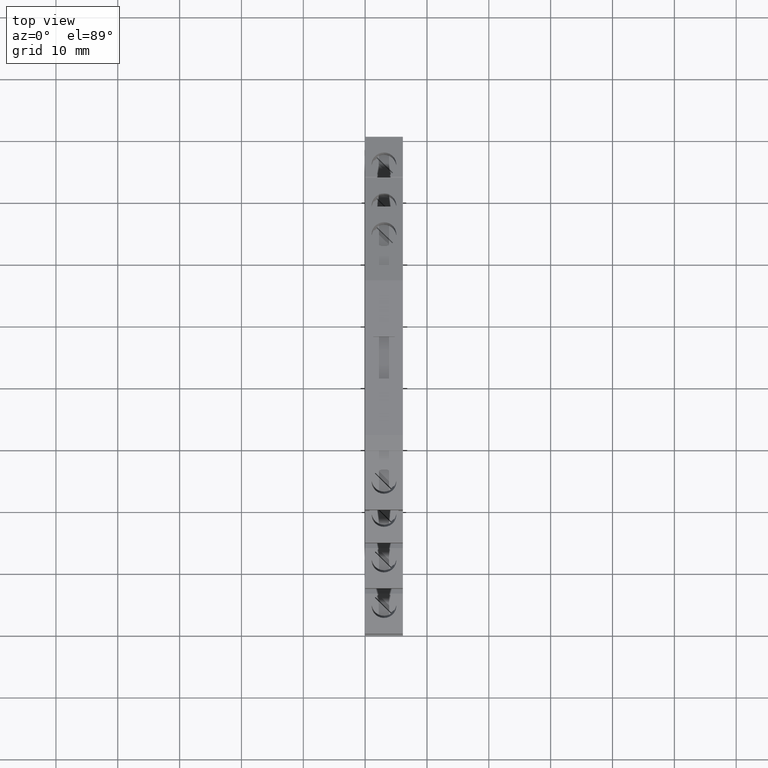
[diagram: clean part render]
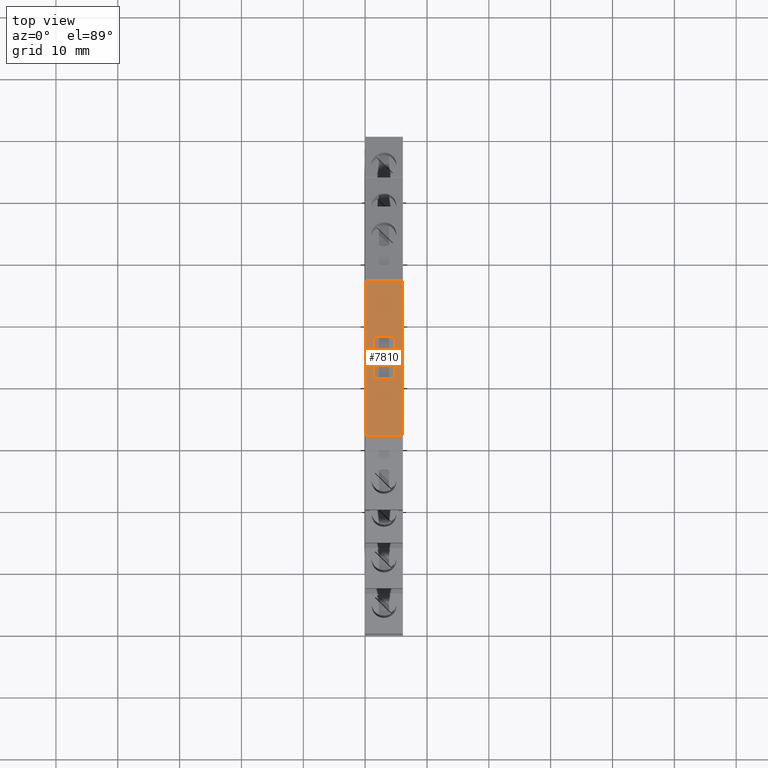
[diagram: same view with one face highlighted and labeled with its STEP entity id]
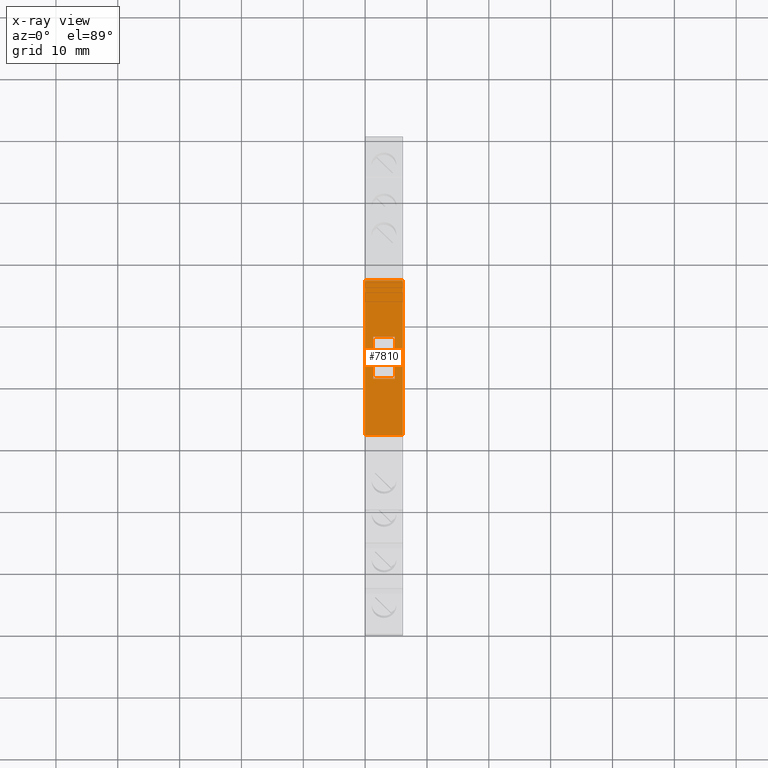
[diagram: x-ray of the same camera — body ghosted, the highlighted face saturated]
A machine part, top view. The second image highlights one B-rep face of the part: STEP entity #7810.
The next image is the same camera in x-ray: the body ghosted, the highlighted face saturated — about 0% of this face is hidden behind the body in this view.
In plain terms, the highlighted planar face has unit normal (-0, 0, -1).
Its self-contained STEP definition (entity closure, byte-faithful):
#100=CARTESIAN_POINT('',(-16.6167732443696,91.3331479429072,
1.50990331349021E-14));
#110=VERTEX_POINT('',#100);
#160=CARTESIAN_POINT('',(1.74895067094092,91.3331479429053,
1.50990331349021E-14));
#170=DIRECTION('',(-1.,1.06331610171392E-13,8.20415341429852E-29));
#180=VECTOR('',#170,1.);
#190=LINE('',#160,#180);
#200=CARTESIAN_POINT('',(8.41467458636292,91.3331479429045,
1.4210854715202E-14));
#210=VERTEX_POINT('',#200);
#220=EDGE_CURVE('',#210,#110,#190,.T.);
#1360=CARTESIAN_POINT('',(-16.6167732443696,91.3331479429072,
-6.1000000000043));
#1370=VERTEX_POINT('',#1360);
#1400=CARTESIAN_POINT('',(-16.6167732443696,91.3331479429072,
-5.30000000000001));
#1410=DIRECTION('',(-1.57809001312173E-29,5.76150921084809E-16,-1.));
#1420=VECTOR('',#1410,1.);
#1430=LINE('',#1400,#1420);
#1440=EDGE_CURVE('',#110,#1370,#1430,.T.);
#7240=CARTESIAN_POINT('',(-16.6167732443696,91.3331479429072,
1.50990331349021E-14));
#7250=DIRECTION('',(-1.06331610171392E-13,-1.,-5.76150921084809E-16));
#7260=DIRECTION('',(-1.,1.06331610171392E-13,7.68019984488942E-29));
#7270=AXIS2_PLACEMENT_3D('',#7240,#7250,#7260);
#7280=PLANE('',#7270);
#7290=ORIENTED_EDGE('',*,*,#220,.F.);
#7300=ORIENTED_EDGE('',*,*,#1440,.F.);
#7310=CARTESIAN_POINT('',(1.74895067094092,91.3331479429053,
-6.10000000000304));
#7320=DIRECTION('',(-1.,1.06331610171392E-13,-6.88518490957562E-14));
#7330=VECTOR('',#7320,1.);
#7340=LINE('',#7310,#7330);
#7350=CARTESIAN_POINT('',(8.41467458636292,91.3331479429045,
-6.10000000000258));
#7360=VERTEX_POINT('',#7350);
#7370=EDGE_CURVE('',#7360,#1370,#7340,.T.);
#7380=ORIENTED_EDGE('',*,*,#7370,.T.);
#7390=CARTESIAN_POINT('',(8.41467458636284,91.3331479429046,
-5.30000000000001));
#7400=DIRECTION('',(-1.58254789451473E-29,5.76150921084809E-16,-1.));
#7410=VECTOR('',#7400,1.);
#7420=LINE('',#7390,#7410);
#7430=EDGE_CURVE('',#210,#7360,#7420,.T.);
#7440=ORIENTED_EDGE('',*,*,#7430,.T.);
#7450=EDGE_LOOP('',(#7440,#7380,#7300,#7290));
#7460=FACE_OUTER_BOUND('',#7450,.T.);
#7470=CARTESIAN_POINT('',(1.74895067094092,91.3331479429053,
-1.29999999988724));
#7480=DIRECTION('',(1.,-1.06331610171392E-13,1.37281145856642E-13));
#7490=VECTOR('',#7480,1.);
#7500=LINE('',#7470,#7490);
#7510=CARTESIAN_POINT('',(-7.50104932900319,91.3331479429062,
-1.29999999988851));
#7520=VERTEX_POINT('',#7510);
#7530=CARTESIAN_POINT('',(-0.701049329003187,91.3331479429055,
-1.29999999988757));
#7540=VERTEX_POINT('',#7530);
#7550=EDGE_CURVE('',#7520,#7540,#7500,.T.);
#7560=ORIENTED_EDGE('',*,*,#7550,.F.);
#7570=CARTESIAN_POINT('',(-0.701049329002638,91.3331479429055,
-5.30000000000001));
#7580=DIRECTION('',(1.37281145856642E-13,5.76150921070201E-16,-1.));
#7590=VECTOR('',#7580,1.);
#7600=LINE('',#7570,#7590);
#7610=CARTESIAN_POINT('',(-0.701049329002707,91.3331479429055,
-4.79999999988755));
#7620=VERTEX_POINT('',#7610);
#7630=EDGE_CURVE('',#7540,#7620,#7600,.T.);
#7640=ORIENTED_EDGE('',*,*,#7630,.F.);
#7650=CARTESIAN_POINT('',(1.74895067094092,91.3331479429053,
-4.79999999988722));
#7660=DIRECTION('',(-1.,1.06331610171392E-13,-1.37281145856642E-13));
#7670=VECTOR('',#7660,1.);
#7680=LINE('',#7650,#7670);
#7690=CARTESIAN_POINT('',(-7.50104932900271,91.3331479429062,
-4.79999999988849));
#7700=VERTEX_POINT('',#7690);
#7710=EDGE_CURVE('',#7620,#7700,#7680,.T.);
#7720=ORIENTED_EDGE('',*,*,#7710,.F.);
#7730=CARTESIAN_POINT('',(-7.50104932900264,91.3331479429062,
-5.30000000000001));
#7740=DIRECTION('',(-1.37281145856642E-13,-5.76150921070201E-16,1.));
#7750=VECTOR('',#7740,1.);
#7760=LINE('',#7730,#7750);
#7770=EDGE_CURVE('',#7700,#7520,#7760,.T.);
#7780=ORIENTED_EDGE('',*,*,#7770,.F.);
#7790=EDGE_LOOP('',(#7780,#7720,#7640,#7560));
#7800=FACE_BOUND('',#7790,.T.);
#7810=ADVANCED_FACE('',(#7460,#7800),#7280,.F.);